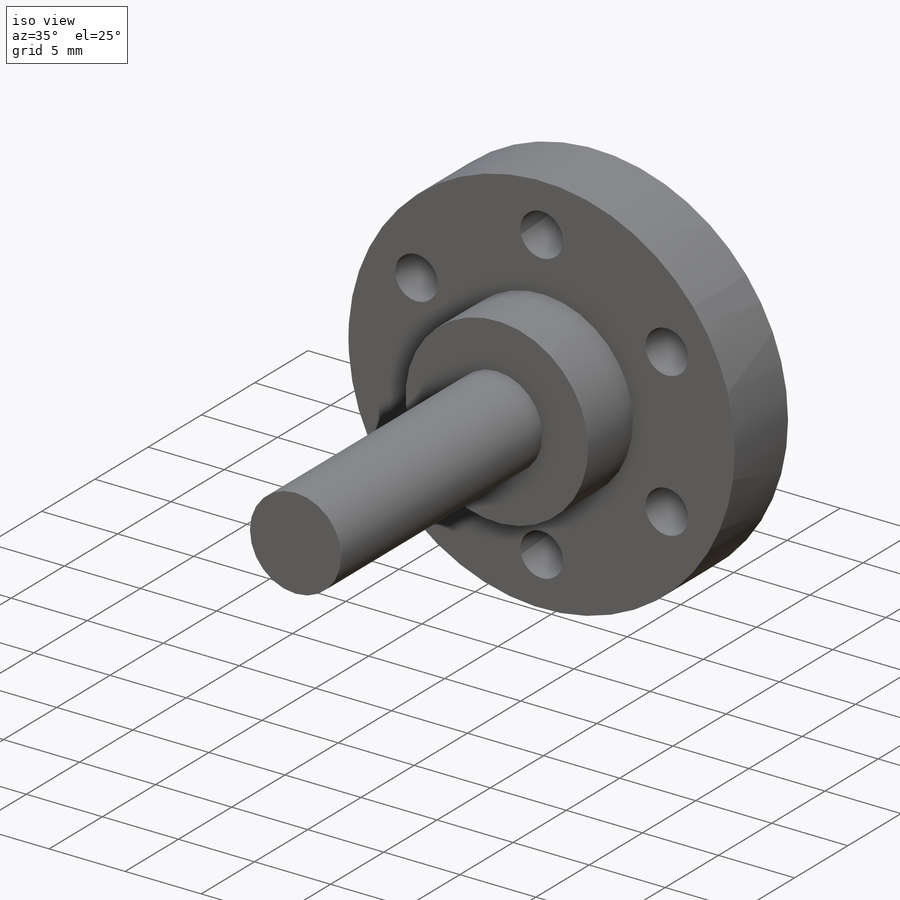
[diagram: iso view]
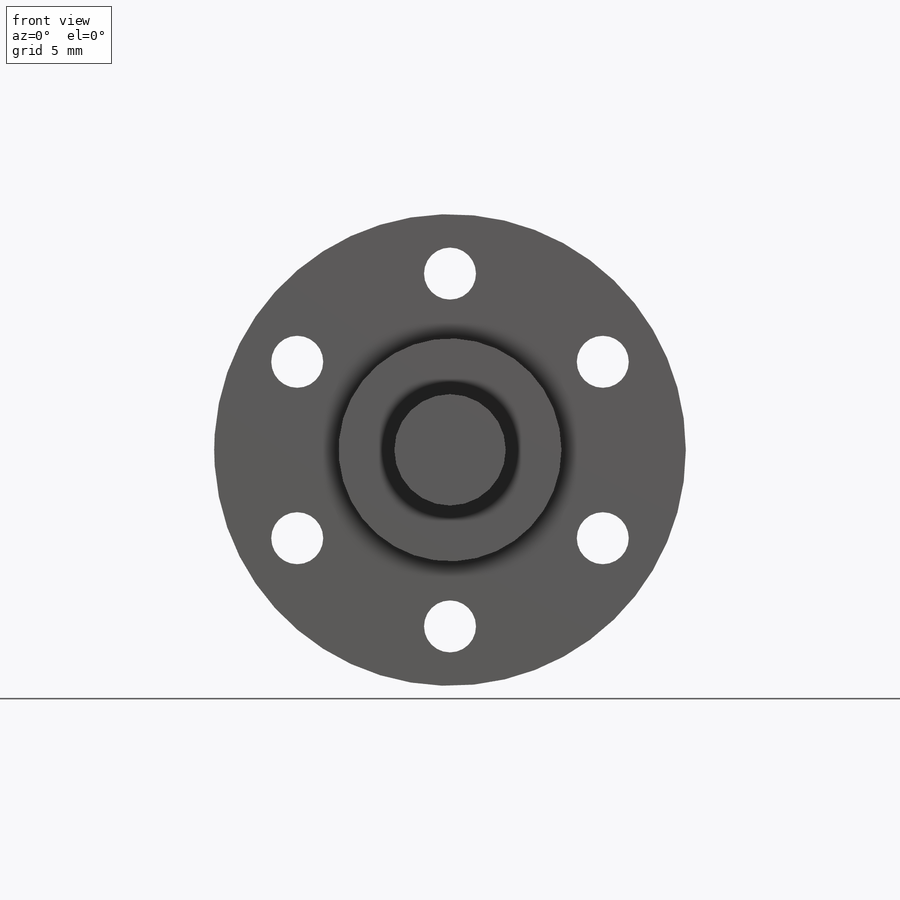
[diagram: front view]
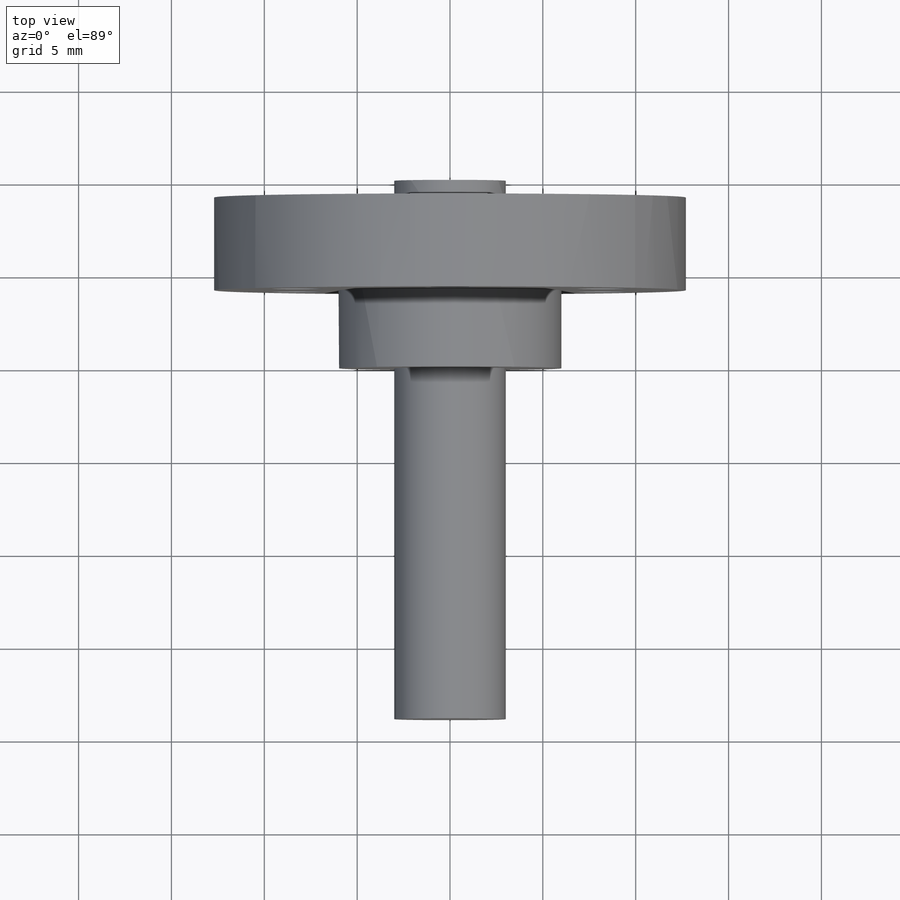
[diagram: top view]
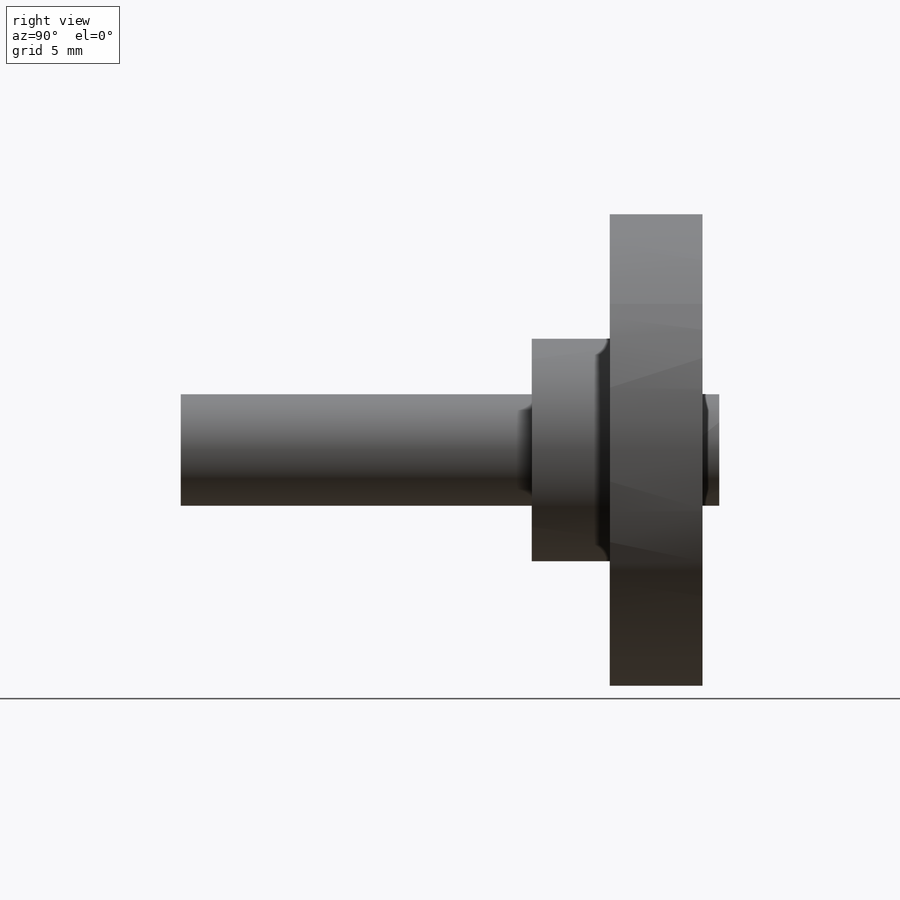
[diagram: right view]
SOLIDWORKS PART (.sldprt)
format: sldprt  version: not decoded by parser v0  size: 186,368 bytes
history: native  units: mm
features: sketch x5, extrude x4, material x1, plane x1, cut_extrude x1 (+12 scaffold rows collapsed)
feature tree (24):
  scaffold x12  (default folders/planes/origin — collapsed)
  material  "1060 Alloy"
  sketch  "Sketch1"  dims[D1=6.0mm]
  extrude  "Boss-Extrude1"  Depth=29mm
  plane  "Plane1"  Offset=8mm
  sketch  "Sketch2"  dims[D1=12.0mm D2=12.0mm]
  extrude  "Boss-Extrude2"  Depth=2.1mm
  sketch  "Sketch3"  dims[D1=25.4mm]
  extrude  "Boss-Extrude3"  Depth=5mm
  sketch  "Sketch4"  dims[D1=12.0mm]
  extrude  "Boss-Extrude4"  Depth=2.1mm
  sketch  "Sketch10"  dims[c1.D1=19.0mm c1.D2=2.8mm c2.D1=6.0]
  cut_extrude  "Cut-Extrude1"  Depth=5mm
decode coverage: 10 of 10 modeling features carry decoded parameters
note: suppression state not decoded; provenance and decode notes live in map.json
